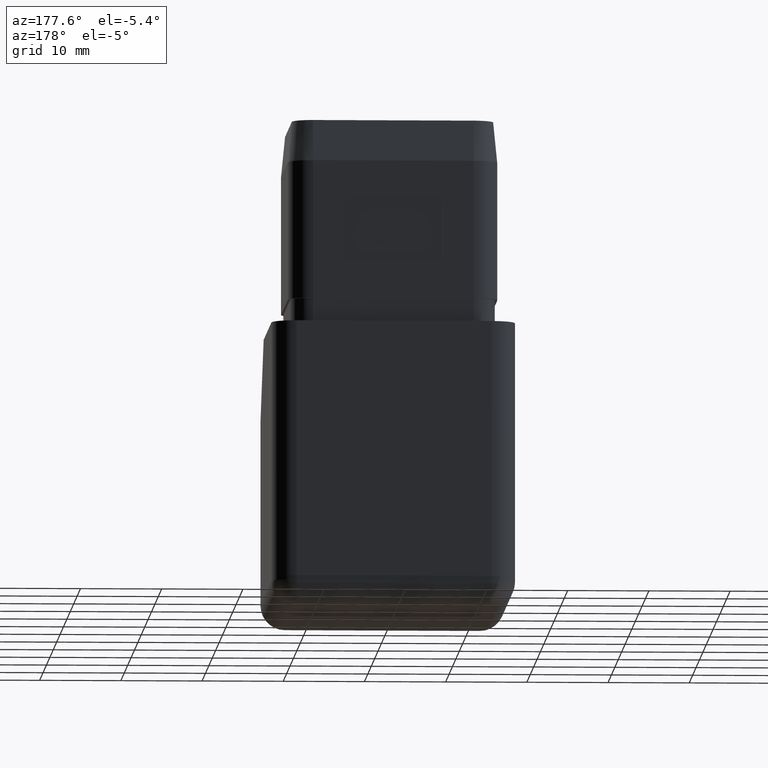
[diagram: clean part render]
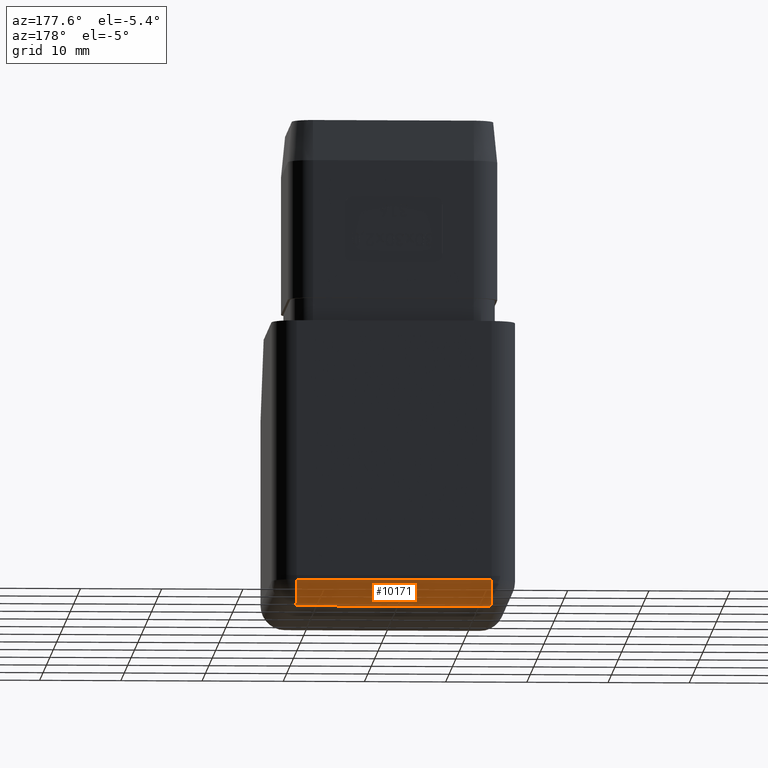
[diagram: same view with one face highlighted and labeled with its STEP entity id]
A machine part, auxiliary view. The second image highlights one B-rep face of the part: STEP entity #10171.
In plain terms, the highlighted cylindrical surface (edge-blend (fillet) strip) has radius 3 mm, axis along (-1, -0, 0).
Its self-contained STEP definition (entity closure, byte-faithful):
#7 = VERTEX_POINT ( 'NONE', #23098 ) ;
#672 = CARTESIAN_POINT ( 'NONE',  ( -12.00000000000000400, 14.49999999999999800, -17.50000000000000000 ) ) ;
#1641 = FACE_OUTER_BOUND ( 'NONE', #11186, .T. ) ;
#2114 = VECTOR ( 'NONE', #2946, 1000.000000000000000 ) ;
#2946 = DIRECTION ( 'NONE',  ( 1.000000000000000000, 1.156482317317871700E-016, -0.0000000000000000000 ) ) ;
#3260 = ORIENTED_EDGE ( 'NONE', *, *, #23604, .T. ) ;
#3434 = CIRCLE ( 'NONE', #20510, 2.999999999999999100 ) ;
#3910 = VERTEX_POINT ( 'NONE', #672 ) ;
#4135 = LINE ( 'NONE', #7062, #2114 ) ;
#4893 = EDGE_CURVE ( 'NONE', #7, #15851, #11843, .T. ) ;
#5743 = ORIENTED_EDGE ( 'NONE', *, *, #4893, .F. ) ;
#5982 = CYLINDRICAL_SURFACE ( 'NONE', #21103, 2.999999999999999100 ) ;
#6119 = AXIS2_PLACEMENT_3D ( 'NONE', #22202, #11369, #26230 ) ;
#6914 = CIRCLE ( 'NONE', #6119, 2.999999999999999100 ) ;
#7062 = CARTESIAN_POINT ( 'NONE',  ( -1.676899360110914100E-015, 14.50000000000000000, -17.50000000000000000 ) ) ;
#7739 = VERTEX_POINT ( 'NONE', #16443 ) ;
#7970 = CARTESIAN_POINT ( 'NONE',  ( -15.00000000000000400, 14.49999999999999800, -14.49999999999999800 ) ) ;
#8240 = DIRECTION ( 'NONE',  ( 0.0000000000000000000, -1.000000000000000000, 0.0000000000000000000 ) ) ;
#10171 = ADVANCED_FACE ( 'NONE', ( #1641 ), #5982, .T. ) ;
#11186 = EDGE_LOOP ( 'NONE', ( #23999, #16441, #3260, #5743 ) ) ;
#11369 = DIRECTION ( 'NONE',  ( 1.000000000000000000, -0.0000000000000000000, -0.0000000000000000000 ) ) ;
#11843 = LINE ( 'NONE', #17777, #20203 ) ;
#15851 = VERTEX_POINT ( 'NONE', #21459 ) ;
#16441 = ORIENTED_EDGE ( 'NONE', *, *, #26507, .F. ) ;
#16443 = CARTESIAN_POINT ( 'NONE',  ( 11.99999999999999600, 14.50000000000000200, -17.50000000000000000 ) ) ;
#17777 = CARTESIAN_POINT ( 'NONE',  ( -15.00000000000000400, 17.49999999999999600, -14.49999999999999800 ) ) ;
#20203 = VECTOR ( 'NONE', #24238, 1000.000000000000000 ) ;
#20510 = AXIS2_PLACEMENT_3D ( 'NONE', #21421, #25722, #25897 ) ;
#21103 = AXIS2_PLACEMENT_3D ( 'NONE', #7970, #25454, #8240 ) ;
#21421 = CARTESIAN_POINT ( 'NONE',  ( 11.99999999999999600, 14.50000000000000200, -14.50000000000000200 ) ) ;
#21459 = CARTESIAN_POINT ( 'NONE',  ( -12.00000000000000400, 17.49999999999999600, -14.49999999999999800 ) ) ;
#22202 = CARTESIAN_POINT ( 'NONE',  ( -12.00000000000000400, 14.49999999999999800, -14.49999999999999800 ) ) ;
#23098 = CARTESIAN_POINT ( 'NONE',  ( 11.99999999999999600, 17.50000000000000000, -14.49999999999999800 ) ) ;
#23604 = EDGE_CURVE ( 'NONE', #3910, #15851, #6914, .T. ) ;
#23999 = ORIENTED_EDGE ( 'NONE', *, *, #27555, .T. ) ;
#24238 = DIRECTION ( 'NONE',  ( -1.000000000000000000, -1.156482317317871700E-016, 0.0000000000000000000 ) ) ;
#25454 = DIRECTION ( 'NONE',  ( -1.000000000000000000, -1.156482317317871700E-016, 0.0000000000000000000 ) ) ;
#25722 = DIRECTION ( 'NONE',  ( -1.000000000000000000, 0.0000000000000000000, -0.0000000000000000000 ) ) ;
#25897 = DIRECTION ( 'NONE',  ( 0.0000000000000000000, 1.156482317317871700E-015, -1.000000000000000000 ) ) ;
#26230 = DIRECTION ( 'NONE',  ( 0.0000000000000000000, 0.0000000000000000000, 1.000000000000000000 ) ) ;
#26507 = EDGE_CURVE ( 'NONE', #3910, #7739, #4135, .T. ) ;
#27555 = EDGE_CURVE ( 'NONE', #7, #7739, #3434, .T. ) ;